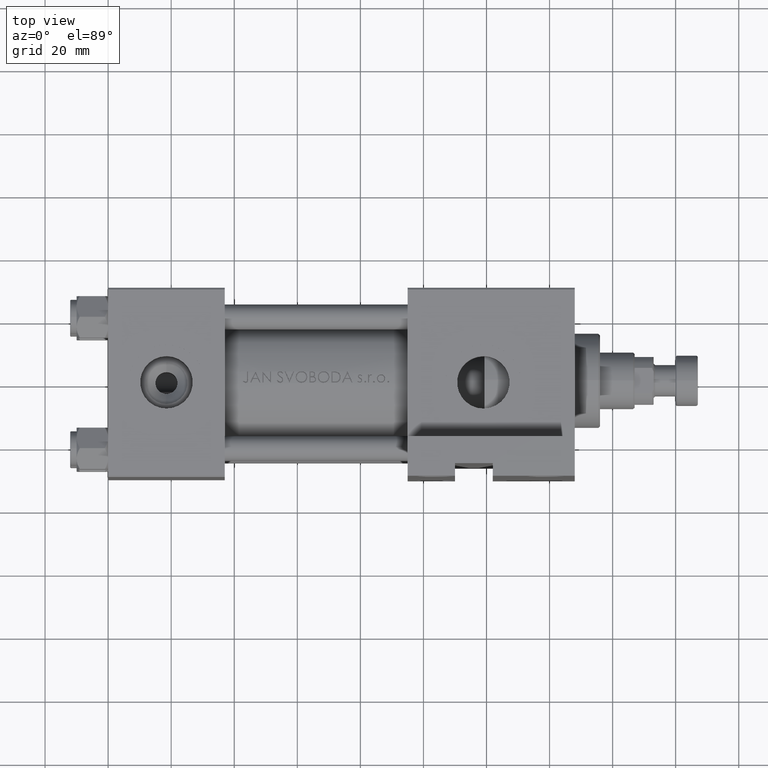
[diagram: clean part render]
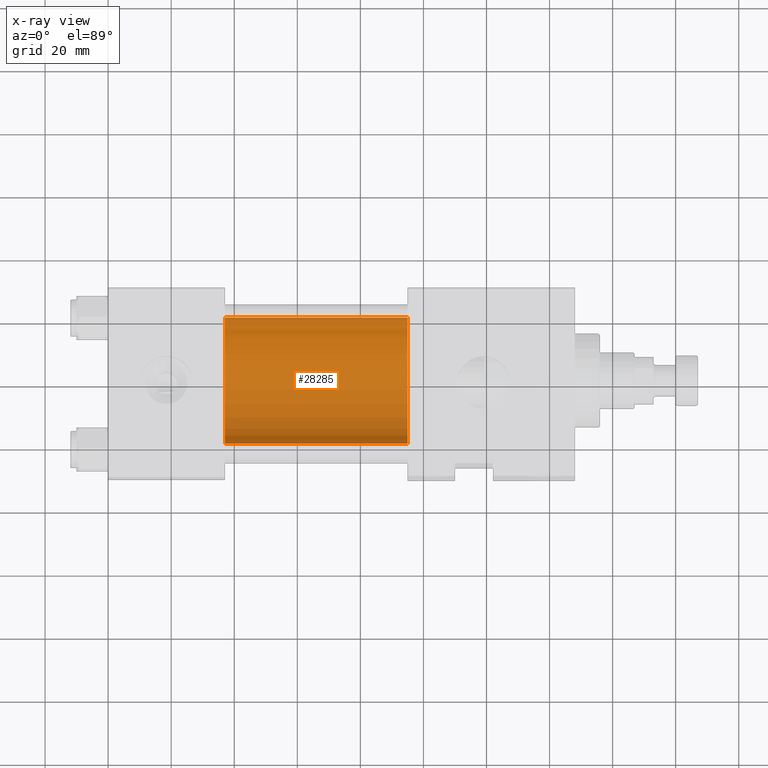
[diagram: x-ray — body ghosted, one internal face saturated and labeled with its STEP entity id]
A machine part, top view, then the same camera in x-ray: the body is ghosted and one INTERNAL B-rep face — a face not visible from any outside direction — is saturated and labeled: STEP entity #28285.
In plain terms, the highlighted cylindrical surface (partial cylindrical patch) has radius 20 mm, axis along (-1, -0, 0).
Its self-contained STEP definition (entity closure, byte-faithful):
#206 = EDGE_CURVE ( 'NONE', #27147, #20057, #13617, .T. ) ;
#1902 = VECTOR ( 'NONE', #32972, 1000.000000000000000 ) ;
#2023 = ORIENTED_EDGE ( 'NONE', *, *, #206, .F. ) ;
#3701 = DIRECTION ( 'NONE',  ( 1.000000000000000000, 0.000000000000000000, 0.000000000000000000 ) ) ;
#6822 = CIRCLE ( 'NONE', #25887, 20.00000000000000000 ) ;
#7788 = EDGE_CURVE ( 'NONE', #16882, #13100, #6822, .T. ) ;
#8392 = CARTESIAN_POINT ( 'NONE',  ( 37.00000000000000000, -1.224646799147354686E-16, 1.000000000000000888 ) ) ;
#8629 = DIRECTION ( 'NONE',  ( 0.000000000000000000, 0.000000000000000000, -1.000000000000000000 ) ) ;
#8947 = AXIS2_PLACEMENT_3D ( 'NONE', #21472, #48317, #36648 ) ;
#9322 = CARTESIAN_POINT ( 'NONE',  ( 95.00000000000000000, 2.326828918379970576E-15, -19.00000000000000000 ) ) ;
#9459 = LINE ( 'NONE', #36821, #35175 ) ;
#10692 = CARTESIAN_POINT ( 'NONE',  ( 37.00000000000000000, -1.224646799147354686E-16, 21.00000000000000000 ) ) ;
#11731 = ORIENTED_EDGE ( 'NONE', *, *, #7788, .T. ) ;
#12698 = CARTESIAN_POINT ( 'NONE',  ( 95.00000000000000000, 2.326828918379970576E-15, -19.00000000000000000 ) ) ;
#13100 = VERTEX_POINT ( 'NONE', #47173 ) ;
#13617 = CIRCLE ( 'NONE', #28705, 20.00000000000000000 ) ;
#13816 = CARTESIAN_POINT ( 'NONE',  ( 37.00000000000000000, 2.326828918379970576E-15, -19.00000000000000000 ) ) ;
#16882 = VERTEX_POINT ( 'NONE', #12698 ) ;
#17913 = DIRECTION ( 'NONE',  ( -1.000000000000000000, -0.000000000000000000, -0.000000000000000000 ) ) ;
#20057 = VERTEX_POINT ( 'NONE', #10692 ) ;
#21230 = CYLINDRICAL_SURFACE ( 'NONE', #8947, 20.00000000000000000 ) ;
#21472 = CARTESIAN_POINT ( 'NONE',  ( 95.00000000000000000, -1.224646799147354686E-16, 1.000000000000000888 ) ) ;
#24208 = DIRECTION ( 'NONE',  ( 0.000000000000000000, 0.000000000000000000, -1.000000000000000000 ) ) ;
#24355 = EDGE_LOOP ( 'NONE', ( #32632, #11731, #29142, #2023 ) ) ;
#25250 = LINE ( 'NONE', #9322, #1902 ) ;
#25887 = AXIS2_PLACEMENT_3D ( 'NONE', #35167, #28678, #24208 ) ;
#27147 = VERTEX_POINT ( 'NONE', #13816 ) ;
#27643 = EDGE_CURVE ( 'NONE', #13100, #20057, #9459, .T. ) ;
#28285 = ADVANCED_FACE ( 'NONE', ( #40125 ), #21230, .F. ) ;
#28678 = DIRECTION ( 'NONE',  ( 1.000000000000000000, 0.000000000000000000, 0.000000000000000000 ) ) ;
#28705 = AXIS2_PLACEMENT_3D ( 'NONE', #8392, #3701, #8629 ) ;
#29142 = ORIENTED_EDGE ( 'NONE', *, *, #27643, .T. ) ;
#32632 = ORIENTED_EDGE ( 'NONE', *, *, #46629, .F. ) ;
#32972 = DIRECTION ( 'NONE',  ( -1.000000000000000000, -0.000000000000000000, -0.000000000000000000 ) ) ;
#35167 = CARTESIAN_POINT ( 'NONE',  ( 95.00000000000000000, -1.224646799147354686E-16, 1.000000000000000888 ) ) ;
#35175 = VECTOR ( 'NONE', #17913, 1000.000000000000000 ) ;
#36648 = DIRECTION ( 'NONE',  ( 0.000000000000000000, 0.000000000000000000, 1.000000000000000000 ) ) ;
#36821 = CARTESIAN_POINT ( 'NONE',  ( 95.00000000000000000, -1.224646799147354686E-16, 21.00000000000000000 ) ) ;
#40125 = FACE_OUTER_BOUND ( 'NONE', #24355, .T. ) ;
#46629 = EDGE_CURVE ( 'NONE', #16882, #27147, #25250, .T. ) ;
#47173 = CARTESIAN_POINT ( 'NONE',  ( 95.00000000000000000, -1.224646799147354686E-16, 21.00000000000000000 ) ) ;
#48317 = DIRECTION ( 'NONE',  ( -1.000000000000000000, -0.000000000000000000, -0.000000000000000000 ) ) ;